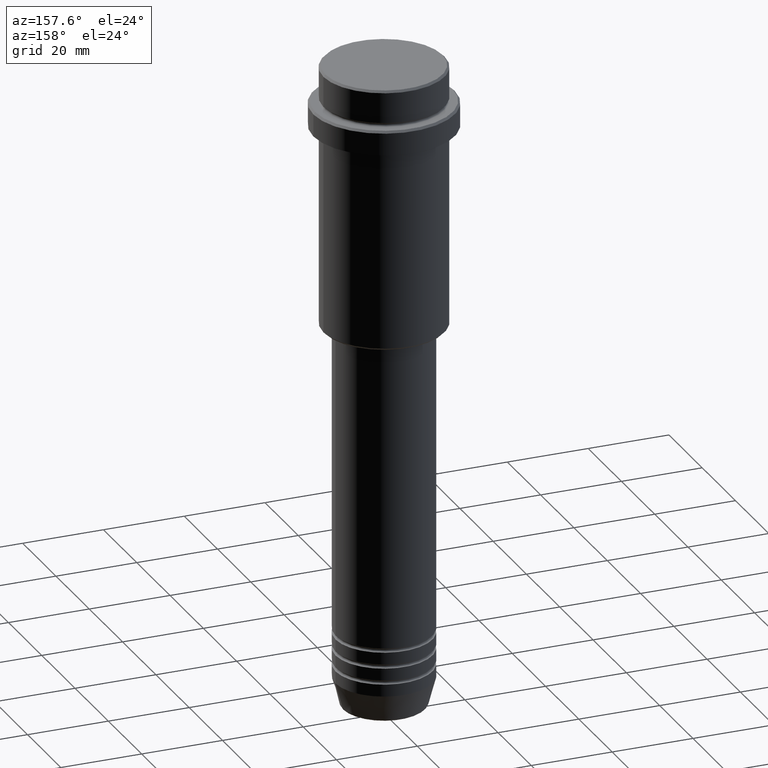
[diagram: clean part render]
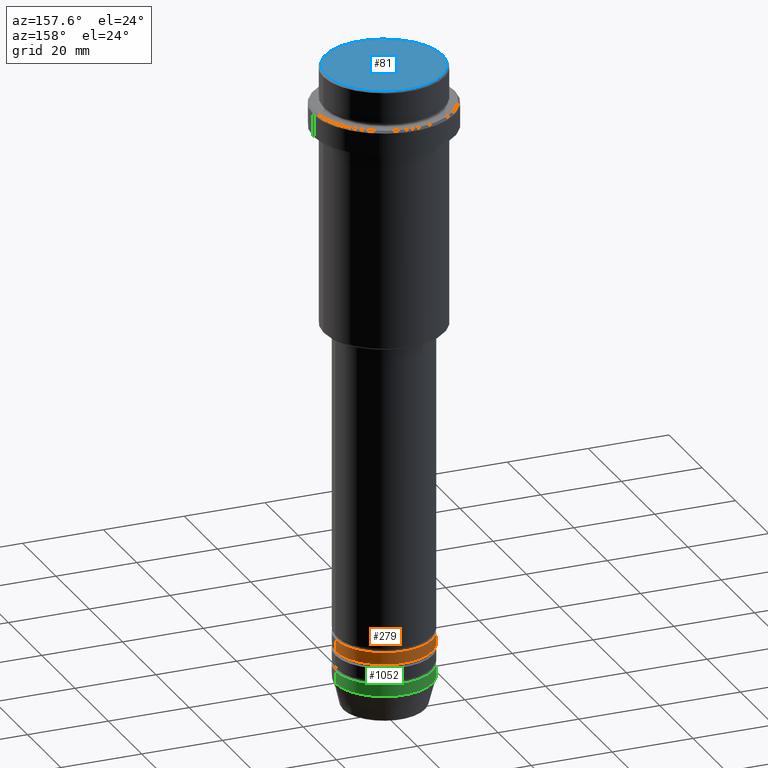
[diagram: same view with three faces highlighted in distinct colors, each labeled with its STEP entity id]
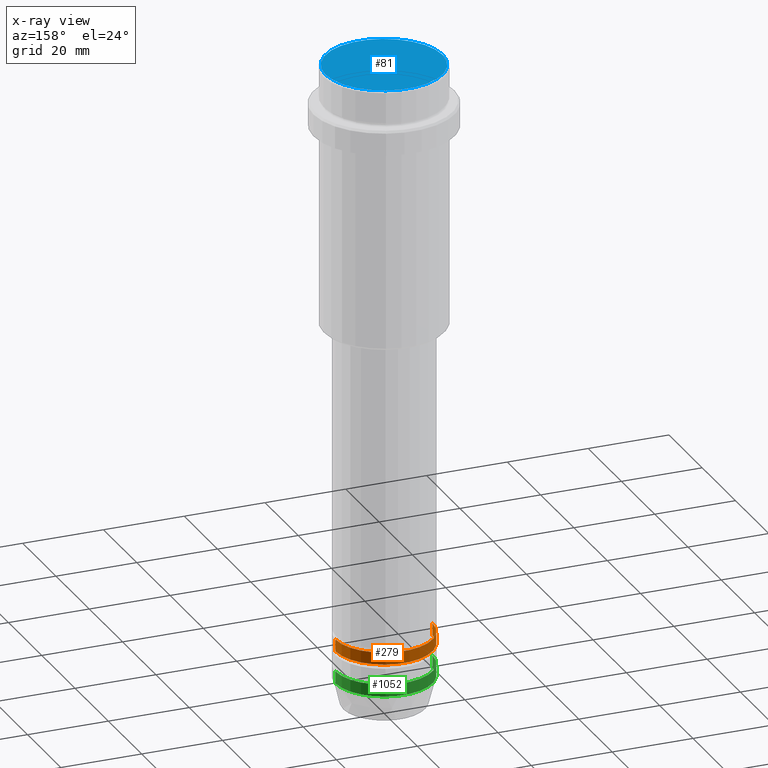
[diagram: x-ray of the same camera — body ghosted, the three highlighted faces saturated]
A machine part, auxiliary view with three faces highlighted in distinct colors.
The next image is the same camera in x-ray (body ghosted, the three faces saturated) — at least one of them is partly hidden behind the body in this view.
Their STEP definitions:

[orange] entity #279 — the highlighted cylindrical surface (partial cylindrical patch) has radius 12 mm, axis along (-0, -0, 1).
#51 = ORIENTED_EDGE ( 'NONE', *, *, #1285, .T. ) ;
#55 = LINE ( 'NONE', #585, #109 ) ;
#109 = VECTOR ( 'NONE', #807, 1000.000000000000000 ) ;
#138 = VERTEX_POINT ( 'NONE', #1214 ) ;
#208 = CARTESIAN_POINT ( 'NONE',  ( -12.00000000000000000, 1.469576158976823947E-15, -144.9999999999999147 ) ) ;
#219 = EDGE_LOOP ( 'NONE', ( #1191, #51, #1104, #983 ) ) ;
#238 = CIRCLE ( 'NONE', #485, 12.00000000000000000 ) ;
#279 = ADVANCED_FACE ( 'NONE', ( #846 ), #832, .T. ) ;
#284 = VECTOR ( 'NONE', #429, 1000.000000000000000 ) ;
#296 = CARTESIAN_POINT ( 'NONE',  ( 12.00000000000000000, 0.000000000000000000, 0.000000000000000000 ) ) ;
#301 = CARTESIAN_POINT ( 'NONE',  ( 0.000000000000000000, 0.000000000000000000, 0.000000000000000000 ) ) ;
#357 = VERTEX_POINT ( 'NONE', #609 ) ;
#395 = EDGE_CURVE ( 'NONE', #357, #138, #1261, .T. ) ;
#427 = CARTESIAN_POINT ( 'NONE',  ( 0.000000000000000000, 0.000000000000000000, -144.9999999999999147 ) ) ;
#429 = DIRECTION ( 'NONE',  ( -0.000000000000000000, -0.000000000000000000, 1.000000000000000000 ) ) ;
#485 = AXIS2_PLACEMENT_3D ( 'NONE', #1265, #912, #1359 ) ;
#585 = CARTESIAN_POINT ( 'NONE',  ( -12.00000000000000000, 1.469576158976823947E-15, 0.000000000000000000 ) ) ;
#595 = DIRECTION ( 'NONE',  ( 1.000000000000000000, 0.000000000000000000, 0.000000000000000000 ) ) ;
#609 = CARTESIAN_POINT ( 'NONE',  ( 12.00000000000000000, 0.000000000000000000, -144.9999999999999147 ) ) ;
#673 = CIRCLE ( 'NONE', #1106, 12.00000000000000000 ) ;
#709 = EDGE_CURVE ( 'NONE', #138, #1088, #238, .T. ) ;
#807 = DIRECTION ( 'NONE',  ( -0.000000000000000000, -0.000000000000000000, 1.000000000000000000 ) ) ;
#832 = CYLINDRICAL_SURFACE ( 'NONE', #1137, 12.00000000000000000 ) ;
#846 = FACE_OUTER_BOUND ( 'NONE', #219, .T. ) ;
#887 = EDGE_CURVE ( 'NONE', #357, #1332, #673, .T. ) ;
#912 = DIRECTION ( 'NONE',  ( -0.000000000000000000, -0.000000000000000000, 1.000000000000000000 ) ) ;
#954 = DIRECTION ( 'NONE',  ( 1.000000000000000000, 0.000000000000000000, 0.000000000000000000 ) ) ;
#978 = CARTESIAN_POINT ( 'NONE',  ( -12.00000000000000000, 1.469576158976823947E-15, -141.9999999999999147 ) ) ;
#983 = ORIENTED_EDGE ( 'NONE', *, *, #395, .F. ) ;
#1050 = DIRECTION ( 'NONE',  ( -0.000000000000000000, -0.000000000000000000, 1.000000000000000000 ) ) ;
#1088 = VERTEX_POINT ( 'NONE', #978 ) ;
#1104 = ORIENTED_EDGE ( 'NONE', *, *, #709, .F. ) ;
#1106 = AXIS2_PLACEMENT_3D ( 'NONE', #427, #1294, #954 ) ;
#1137 = AXIS2_PLACEMENT_3D ( 'NONE', #301, #1050, #595 ) ;
#1191 = ORIENTED_EDGE ( 'NONE', *, *, #887, .T. ) ;
#1214 = CARTESIAN_POINT ( 'NONE',  ( 12.00000000000000000, 0.000000000000000000, -141.9999999999999147 ) ) ;
#1261 = LINE ( 'NONE', #296, #284 ) ;
#1265 = CARTESIAN_POINT ( 'NONE',  ( 0.000000000000000000, 0.000000000000000000, -141.9999999999999147 ) ) ;
#1285 = EDGE_CURVE ( 'NONE', #1332, #1088, #55, .T. ) ;
#1294 = DIRECTION ( 'NONE',  ( -0.000000000000000000, -0.000000000000000000, 1.000000000000000000 ) ) ;
#1332 = VERTEX_POINT ( 'NONE', #208 ) ;
#1359 = DIRECTION ( 'NONE',  ( 1.000000000000000000, 0.000000000000000000, 0.000000000000000000 ) ) ;

[blue] entity #81 — the highlighted planar face has unit normal (0, -0, 1).
#81 = ADVANCED_FACE ( 'NONE', ( #696 ), #1348, .T. ) ;
#127 = EDGE_CURVE ( 'NONE', #798, #425, #340, .T. ) ;
#153 = EDGE_LOOP ( 'NONE', ( #1135, #1362 ) ) ;
#179 = CARTESIAN_POINT ( 'NONE',  ( -14.49999999999999645, 0.000000000000000000, 0.000000000000000000 ) ) ;
#213 = AXIS2_PLACEMENT_3D ( 'NONE', #1346, #291, #1169 ) ;
#291 = DIRECTION ( 'NONE',  ( 0.000000000000000000, -0.000000000000000000, 1.000000000000000000 ) ) ;
#340 = CIRCLE ( 'NONE', #1112, 14.49999999999999645 ) ;
#373 = AXIS2_PLACEMENT_3D ( 'NONE', #640, #974, #542 ) ;
#425 = VERTEX_POINT ( 'NONE', #1389 ) ;
#461 = CIRCLE ( 'NONE', #373, 14.49999999999999645 ) ;
#513 = EDGE_CURVE ( 'NONE', #425, #798, #461, .T. ) ;
#542 = DIRECTION ( 'NONE',  ( 1.000000000000000000, 0.000000000000000000, 0.000000000000000000 ) ) ;
#640 = CARTESIAN_POINT ( 'NONE',  ( 0.000000000000000000, 0.000000000000000000, 0.000000000000000000 ) ) ;
#696 = FACE_OUTER_BOUND ( 'NONE', #153, .T. ) ;
#798 = VERTEX_POINT ( 'NONE', #179 ) ;
#974 = DIRECTION ( 'NONE',  ( -0.000000000000000000, -0.000000000000000000, 1.000000000000000000 ) ) ;
#1093 = DIRECTION ( 'NONE',  ( 1.000000000000000000, 0.000000000000000000, 0.000000000000000000 ) ) ;
#1112 = AXIS2_PLACEMENT_3D ( 'NONE', #1306, #1207, #1093 ) ;
#1135 = ORIENTED_EDGE ( 'NONE', *, *, #127, .T. ) ;
#1169 = DIRECTION ( 'NONE',  ( 1.000000000000000000, 0.000000000000000000, 0.000000000000000000 ) ) ;
#1207 = DIRECTION ( 'NONE',  ( -0.000000000000000000, -0.000000000000000000, 1.000000000000000000 ) ) ;
#1306 = CARTESIAN_POINT ( 'NONE',  ( 0.000000000000000000, 0.000000000000000000, 0.000000000000000000 ) ) ;
#1346 = CARTESIAN_POINT ( 'NONE',  ( 0.000000000000000000, 0.000000000000000000, 0.000000000000000000 ) ) ;
#1348 = PLANE ( 'NONE',  #213 ) ;
#1362 = ORIENTED_EDGE ( 'NONE', *, *, #513, .T. ) ;
#1389 = CARTESIAN_POINT ( 'NONE',  ( 14.49999999999999645, 1.806354028742345802E-15, 0.000000000000000000 ) ) ;

[green] entity #1052 — the highlighted cylindrical surface (partial cylindrical patch) has radius 12 mm, axis along (-0, -0, 1).
#12 = FACE_OUTER_BOUND ( 'NONE', #642, .T. ) ;
#50 = ORIENTED_EDGE ( 'NONE', *, *, #1410, .F. ) ;
#64 = DIRECTION ( 'NONE',  ( 1.000000000000000000, 0.000000000000000000, 0.000000000000000000 ) ) ;
#67 = VECTOR ( 'NONE', #1059, 1000.000000000000000 ) ;
#74 = DIRECTION ( 'NONE',  ( -0.000000000000000000, -0.000000000000000000, 1.000000000000000000 ) ) ;
#147 = ORIENTED_EDGE ( 'NONE', *, *, #300, .F. ) ;
#246 = EDGE_CURVE ( 'NONE', #1180, #1339, #323, .T. ) ;
#273 = DIRECTION ( 'NONE',  ( -0.000000000000000000, -0.000000000000000000, 1.000000000000000000 ) ) ;
#300 = EDGE_CURVE ( 'NONE', #1180, #550, #731, .T. ) ;
#312 = DIRECTION ( 'NONE',  ( -0.000000000000000000, -0.000000000000000000, 1.000000000000000000 ) ) ;
#323 = CIRCLE ( 'NONE', #1293, 12.00000000000000000 ) ;
#403 = CARTESIAN_POINT ( 'NONE',  ( -12.00000000000000000, 1.469576158976823947E-15, -153.0000000000000000 ) ) ;
#455 = CYLINDRICAL_SURFACE ( 'NONE', #1182, 12.00000000000000000 ) ;
#480 = EDGE_CURVE ( 'NONE', #1339, #822, #647, .T. ) ;
#506 = AXIS2_PLACEMENT_3D ( 'NONE', #631, #312, #958 ) ;
#517 = CARTESIAN_POINT ( 'NONE',  ( -12.00000000000000000, 1.469576158976823947E-15, 0.000000000000000000 ) ) ;
#550 = VERTEX_POINT ( 'NONE', #1333 ) ;
#622 = CARTESIAN_POINT ( 'NONE',  ( 0.000000000000000000, 0.000000000000000000, -153.0000000000000000 ) ) ;
#631 = CARTESIAN_POINT ( 'NONE',  ( 0.000000000000000000, 0.000000000000000000, -150.0000000000000000 ) ) ;
#642 = EDGE_LOOP ( 'NONE', ( #905, #781, #50, #147 ) ) ;
#647 = LINE ( 'NONE', #517, #67 ) ;
#731 = LINE ( 'NONE', #1040, #737 ) ;
#737 = VECTOR ( 'NONE', #74, 1000.000000000000000 ) ;
#781 = ORIENTED_EDGE ( 'NONE', *, *, #480, .T. ) ;
#822 = VERTEX_POINT ( 'NONE', #1047 ) ;
#892 = DIRECTION ( 'NONE',  ( 1.000000000000000000, 0.000000000000000000, 0.000000000000000000 ) ) ;
#905 = ORIENTED_EDGE ( 'NONE', *, *, #246, .T. ) ;
#958 = DIRECTION ( 'NONE',  ( 1.000000000000000000, 0.000000000000000000, 0.000000000000000000 ) ) ;
#995 = CARTESIAN_POINT ( 'NONE',  ( 0.000000000000000000, 0.000000000000000000, 0.000000000000000000 ) ) ;
#1011 = CARTESIAN_POINT ( 'NONE',  ( 12.00000000000000000, 0.000000000000000000, -153.0000000000000000 ) ) ;
#1040 = CARTESIAN_POINT ( 'NONE',  ( 12.00000000000000000, 0.000000000000000000, 0.000000000000000000 ) ) ;
#1047 = CARTESIAN_POINT ( 'NONE',  ( -12.00000000000000000, 1.469576158976823947E-15, -150.0000000000000000 ) ) ;
#1052 = ADVANCED_FACE ( 'NONE', ( #12 ), #455, .T. ) ;
#1059 = DIRECTION ( 'NONE',  ( -0.000000000000000000, -0.000000000000000000, 1.000000000000000000 ) ) ;
#1180 = VERTEX_POINT ( 'NONE', #1011 ) ;
#1182 = AXIS2_PLACEMENT_3D ( 'NONE', #995, #1205, #892 ) ;
#1205 = DIRECTION ( 'NONE',  ( -0.000000000000000000, -0.000000000000000000, 1.000000000000000000 ) ) ;
#1293 = AXIS2_PLACEMENT_3D ( 'NONE', #622, #273, #64 ) ;
#1333 = CARTESIAN_POINT ( 'NONE',  ( 12.00000000000000000, 0.000000000000000000, -150.0000000000000000 ) ) ;
#1339 = VERTEX_POINT ( 'NONE', #403 ) ;
#1410 = EDGE_CURVE ( 'NONE', #550, #822, #1412, .T. ) ;
#1412 = CIRCLE ( 'NONE', #506, 12.00000000000000000 ) ;